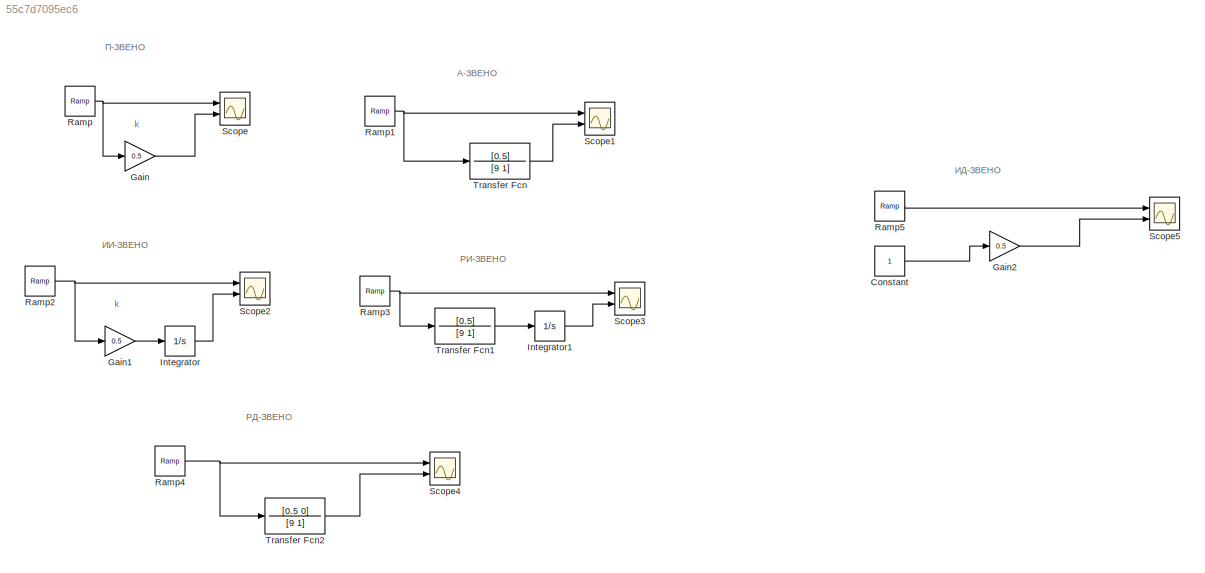
MODEL slx_55c7d7095ec6
KIND model
CONFIG AbsTol = auto
CONFIG EnableMultiTasking = off
CONFIG FixedStep = auto
CONFIG MaxStep = auto
CONFIG MinStep = auto
CONFIG RelTol = 1e-3
CONFIG SampleTimeConstraint = Unconstrained
CONFIG Solver = VariableStepAuto
CONFIG SolverName = VariableStepAuto
CONFIG StartTime = 0.0
CONFIG StopTime = 25
WORKSPACE source: mxarray member
WORKSPACE k = 0.5
BLOCK [Constant] Constant
  Commented = on
BLOCK [Gain] Gain
  Gain = 0.5
  OutDataTypeStr = Inherit: Inherit via internal rule
  ParamDataTypeStr = Inherit: Inherit via internal rule
  SaturateOnIntegerOverflow = off
BLOCK [Gain] Gain1
  Gain = 0.5
  OutDataTypeStr = Inherit: Inherit via internal rule
  ParamDataTypeStr = Inherit: Inherit via internal rule
  SaturateOnIntegerOverflow = off
BLOCK [Gain] Gain2
  Commented = on
  Gain = 0.5
  OutDataTypeStr = Inherit: Inherit via internal rule
  ParamDataTypeStr = Inherit: Inherit via internal rule
  SaturateOnIntegerOverflow = off
BLOCK [Integrator] Integrator
  Ports = [1, 1]
BLOCK [Integrator] Integrator1
  Ports = [1, 1]
BLOCK [Reference] Ramp  REF=simulink/Sources/Ramp
  Ports = [0, 1]
  SourceBlock = simulink/Sources/Ramp
  SourceProductBaseCode = SL
  SourceProductName = Simulink
  SourceType = Ramp
BLOCK [Reference] Ramp1  REF=simulink/Sources/Ramp
  Ports = [0, 1]
  SourceBlock = simulink/Sources/Ramp
  SourceProductBaseCode = SL
  SourceProductName = Simulink
  SourceType = Ramp
BLOCK [Reference] Ramp2  REF=simulink/Sources/Ramp
  Ports = [0, 1]
  SourceBlock = simulink/Sources/Ramp
  SourceProductBaseCode = SL
  SourceProductName = Simulink
  SourceType = Ramp
BLOCK [Reference] Ramp3  REF=simulink/Sources/Ramp
  Ports = [0, 1]
  SourceBlock = simulink/Sources/Ramp
  SourceProductBaseCode = SL
  SourceProductName = Simulink
  SourceType = Ramp
BLOCK [Reference] Ramp4  REF=simulink/Sources/Ramp
  Ports = [0, 1]
  SourceBlock = simulink/Sources/Ramp
  SourceProductBaseCode = SL
  SourceProductName = Simulink
  SourceType = Ramp
BLOCK [Reference] Ramp5  REF=simulink/Sources/Ramp
  Commented = on
  Ports = [0, 1]
  SourceBlock = simulink/Sources/Ramp
  SourceProductBaseCode = SL
  SourceProductName = Simulink
  SourceType = Ramp
BLOCK [Scope] Scope
  Floating = off
  NumInputPorts = 2
  Ports = [2]
  ScopeSpecificationString = Simulink.scopes.TimeScopeBlockCfg('CurrentConfiguration', extmgr.ConfigurationSet(extmgr.Configuration('Core','General UI',true,'FigureColor',[1 1 1]),extmgr.Configuration('Core','Source UI',true),extmgr.Configuration('Sources','WiredSimulink',true),extmgr.Configuration('Visuals','Time Domain',true,'SerializedDisplays',{struct('MinYLimReal','0.4375','MaxYLimReal','1.0625','YLabelReal','','MinYLimM...<+1601ch>
BLOCK [Scope] Scope1
  Floating = off
  NumInputPorts = 2
  Ports = [2]
  ScopeSpecificationString = Simulink.scopes.TimeScopeBlockCfg('CurrentConfiguration', extmgr.ConfigurationSet(extmgr.Configuration('Core','General UI',true,'FigureColor',[1 1 1]),extmgr.Configuration('Core','Source UI',true),extmgr.Configuration('Sources','WiredSimulink',true,'DataLoggingVariableName','ScopeData1'),extmgr.Configuration('Visuals','Time Domain',true,'SerializedDisplays',{struct('MinYLimReal','-0.07968','MaxYLi...<+1630ch>
BLOCK [Scope] Scope2
  Floating = off
  NumInputPorts = 2
  Ports = [2]
  ScopeSpecificationString = Simulink.scopes.TimeScopeBlockCfg('CurrentConfiguration', extmgr.ConfigurationSet(extmgr.Configuration('Core','General UI',true,'FigureColor',[1 1 1]),extmgr.Configuration('Core','Source UI',true),extmgr.Configuration('Sources','WiredSimulink',true,'DataLoggingVariableName','ScopeData2'),extmgr.Configuration('Visuals','Time Domain',true,'SerializedDisplays',{struct('MinYLimReal','-1.5625','MaxYLim...<+1671ch>
BLOCK [Scope] Scope3
  Floating = off
  NumInputPorts = 2
  Ports = [2]
  ScopeSpecificationString = Simulink.scopes.TimeScopeBlockCfg('CurrentConfiguration', extmgr.ConfigurationSet(extmgr.Configuration('Core','General UI',true,'FigureColor',[1 1 1]),extmgr.Configuration('Core','Source UI',true),extmgr.Configuration('Sources','WiredSimulink',true,'DataLoggingVariableName','ScopeData3'),extmgr.Configuration('Visuals','Time Domain',true,'SerializedDisplays',{struct('MinYLimReal','-1.03497','MaxYLi...<+1641ch>
BLOCK [Scope] Scope4
  Floating = off
  NumInputPorts = 2
  Ports = [2]
  ScopeSpecificationString = Simulink.scopes.TimeScopeBlockCfg('CurrentConfiguration', extmgr.ConfigurationSet(extmgr.Configuration('Core','General UI',true,'FigureColor',[1 1 1]),extmgr.Configuration('Core','Source UI',true),extmgr.Configuration('Sources','WiredSimulink',true,'DataLoggingVariableName','ScopeData4'),extmgr.Configuration('Visuals','Time Domain',true,'SerializedDisplays',{struct('MinYLimReal','-0.12277','MaxYLi...<+1660ch>
BLOCK [Scope] Scope5
  Commented = on
  Floating = off
  NumInputPorts = 2
  Ports = [2]
  ScopeSpecificationString = Simulink.scopes.TimeScopeBlockCfg('CurrentConfiguration', extmgr.ConfigurationSet(extmgr.Configuration('Core','General UI',true),extmgr.Configuration('Core','Source UI',true),extmgr.Configuration('Sources','WiredSimulink',true,'DataLoggingVariableName','ScopeData5'),extmgr.Configuration('Visuals','Time Domain',true,'SerializedDisplays',{struct('MinYLimReal','-0.12277','MaxYLimReal','5.1519','YLabe...<+1419ch>
BLOCK [TransferFcn] Transfer Fcn
  Denominator = [9 1]
  Numerator = [0.5]
BLOCK [TransferFcn] Transfer Fcn1
  Denominator = [9 1]
  Numerator = [0.5]
BLOCK [TransferFcn] Transfer Fcn2
  Denominator = [9 1]
  Numerator = [0.5 0]
ANNOTATION (root): k
ANNOTATION (root): А-ЗВЕНО
ANNOTATION (root): ИД-ЗВЕНО
ANNOTATION (root): ИИ-ЗВЕНО
ANNOTATION (root): П-ЗВЕНО
ANNOTATION (root): РД-ЗВЕНО
ANNOTATION (root): РИ-ЗВЕНО
LINE Constant:1 -> Gain2:1
LINE Gain1:1 -> Integrator:1
LINE Gain2:1 -> Scope5:2
LINE Gain:1 -> Scope:2
LINE Integrator1:1 -> Scope3:2
LINE Integrator:1 -> Scope2:2
NET Ramp1:1 -> Scope1:1, Transfer Fcn:1
NET Ramp2:1 -> Gain1:1, Scope2:1
NET Ramp3:1 -> Scope3:1, Transfer Fcn1:1
NET Ramp4:1 -> Scope4:1, Transfer Fcn2:1
LINE Ramp5:1 -> Scope5:1
NET Ramp:1 -> Gain:1, Scope:1
LINE Transfer Fcn1:1 -> Integrator1:1
LINE Transfer Fcn2:1 -> Scope4:2
LINE Transfer Fcn:1 -> Scope1:2
note: NET lines group one-source signal fan-out (src -> all destinations, sorted); 1:1 wires keep LINE
